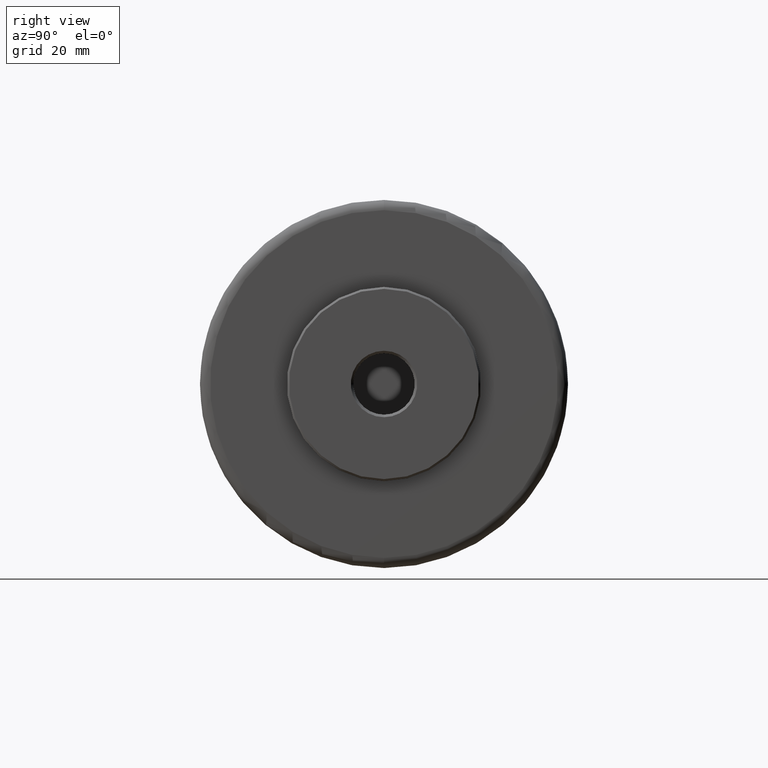
[diagram: clean part render]
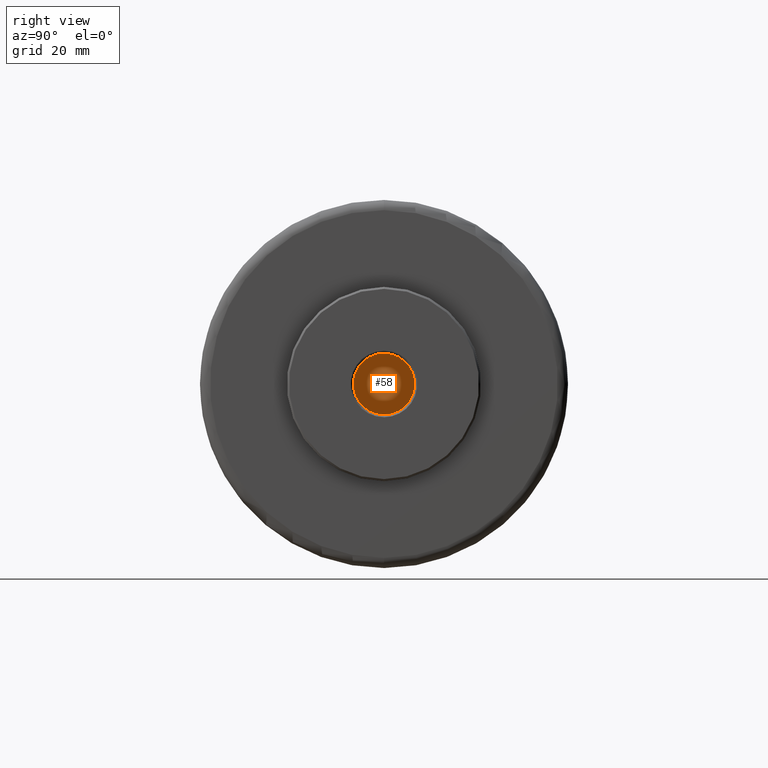
[diagram: same view with one face highlighted and labeled with its STEP entity id]
A machine part, right view. The second image highlights one B-rep face of the part: STEP entity #58.
In plain terms, the highlighted planar face has unit normal (1, 0, 0).
Its self-contained STEP definition (entity closure, byte-faithful):
#46 = DIRECTION ( 'NONE',  ( 0.0000000000000000000, 0.0000000000000000000, 1.000000000000000000 ) ) ;
#58 = ADVANCED_FACE ( 'NONE', ( #706 ), #450, .T. ) ;
#123 = DIRECTION ( 'NONE',  ( 1.000000000000000000, 0.0000000000000000000, 0.0000000000000000000 ) ) ;
#124 = CARTESIAN_POINT ( 'NONE',  ( 60.50000000000003600, 0.0000000000000000000, 5.999999999999994700 ) ) ;
#152 = ORIENTED_EDGE ( 'NONE', *, *, #1157, .F. ) ;
#209 = EDGE_LOOP ( 'NONE', ( #152, #319 ) ) ;
#255 = CIRCLE ( 'NONE', #559, 5.999999999999994700 ) ;
#319 = ORIENTED_EDGE ( 'NONE', *, *, #1186, .F. ) ;
#382 = DIRECTION ( 'NONE',  ( -1.000000000000000000, -0.0000000000000000000, -0.0000000000000000000 ) ) ;
#427 = VERTEX_POINT ( 'NONE', #124 ) ;
#450 = PLANE ( 'NONE',  #894 ) ;
#559 = AXIS2_PLACEMENT_3D ( 'NONE', #1336, #695, #46 ) ;
#695 = DIRECTION ( 'NONE',  ( -1.000000000000000000, -0.0000000000000000000, -0.0000000000000000000 ) ) ;
#706 = FACE_OUTER_BOUND ( 'NONE', #209, .T. ) ;
#769 = AXIS2_PLACEMENT_3D ( 'NONE', #1010, #382, #1119 ) ;
#894 = AXIS2_PLACEMENT_3D ( 'NONE', #1182, #123, #1066 ) ;
#996 = CIRCLE ( 'NONE', #769, 5.999999999999994700 ) ;
#1010 = CARTESIAN_POINT ( 'NONE',  ( 60.50000000000003600, 0.0000000000000000000, 0.0000000000000000000 ) ) ;
#1066 = DIRECTION ( 'NONE',  ( 0.0000000000000000000, 0.0000000000000000000, -1.000000000000000000 ) ) ;
#1119 = DIRECTION ( 'NONE',  ( 0.0000000000000000000, 0.0000000000000000000, 1.000000000000000000 ) ) ;
#1157 = EDGE_CURVE ( 'NONE', #427, #1366, #255, .T. ) ;
#1182 = CARTESIAN_POINT ( 'NONE',  ( 60.50000000000003600, 5.999999999999994700, 0.0000000000000000000 ) ) ;
#1186 = EDGE_CURVE ( 'NONE', #1366, #427, #996, .T. ) ;
#1324 = CARTESIAN_POINT ( 'NONE',  ( 60.50000000000003600, 7.347880794884113800E-016, -5.999999999999994700 ) ) ;
#1336 = CARTESIAN_POINT ( 'NONE',  ( 60.50000000000003600, 0.0000000000000000000, 0.0000000000000000000 ) ) ;
#1366 = VERTEX_POINT ( 'NONE', #1324 ) ;